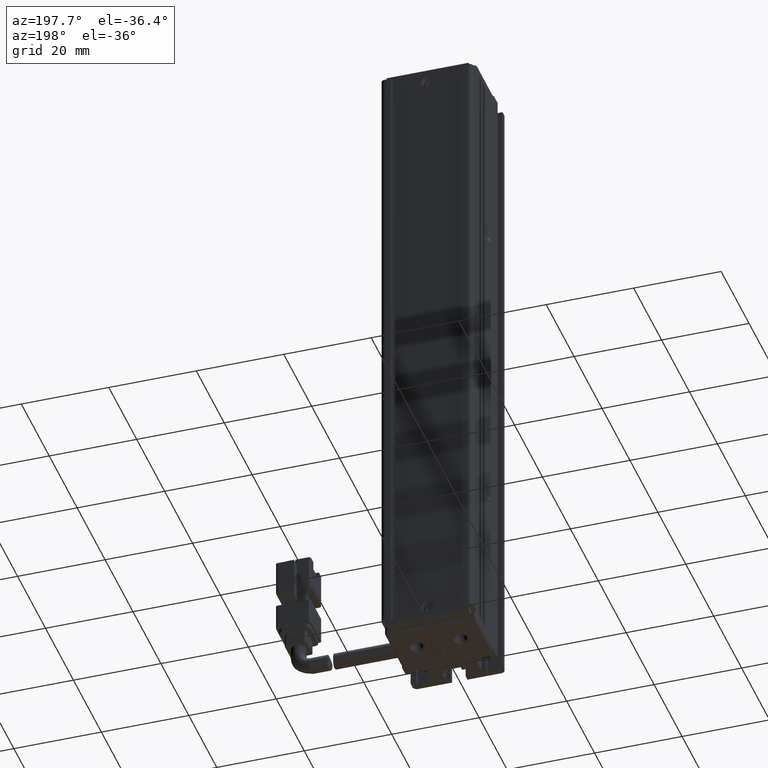
[diagram: clean part render]
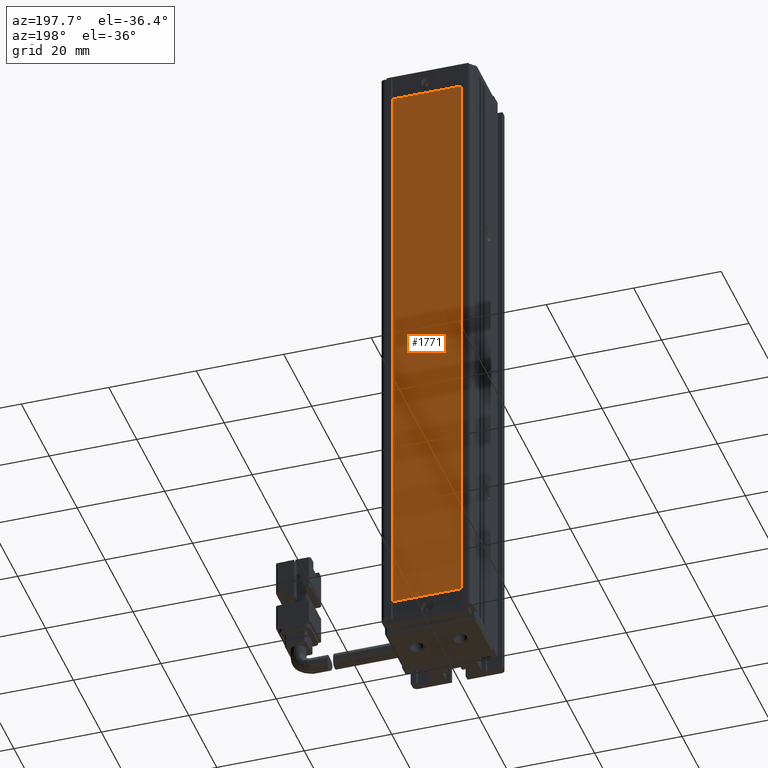
[diagram: same view with one face highlighted and labeled with its STEP entity id]
A machine part, auxiliary view. The second image highlights one B-rep face of the part: STEP entity #1771.
In plain terms, the highlighted planar face has unit normal (0, 1, 0).
Its self-contained STEP definition (entity closure, byte-faithful):
#286 = CARTESIAN_POINT ( 'NONE',  ( 32.92537974683542500, 34.19073232304837300, -183.0000000000000000 ) ) ;
#1771 = ADVANCED_FACE ( 'NONE', ( #39342 ), #8700, .T. ) ;
#2033 = CARTESIAN_POINT ( 'NONE',  ( 32.92537974683542500, 34.19073232304837300, -183.0000000000000000 ) ) ;
#5018 = VERTEX_POINT ( 'NONE', #2033 ) ;
#6035 = VERTEX_POINT ( 'NONE', #38506 ) ;
#6193 = CARTESIAN_POINT ( 'NONE',  ( 48.92537974683541800, 34.19073232304837300, -183.0000000000000000 ) ) ;
#6370 = LINE ( 'NONE', #286, #17532 ) ;
#6866 = DIRECTION ( 'NONE',  ( 1.020425574104004100E-016, 0.0000000000000000000, 1.000000000000000000 ) ) ;
#7505 = VERTEX_POINT ( 'NONE', #6193 ) ;
#8700 = PLANE ( 'NONE',  #29265 ) ;
#8925 = VECTOR ( 'NONE', #34229, 1000.000000000000000 ) ;
#10165 = EDGE_CURVE ( 'NONE', #7505, #5018, #29107, .T. ) ;
#11411 = EDGE_CURVE ( 'NONE', #25879, #6035, #18626, .T. ) ;
#11717 = VECTOR ( 'NONE', #31494, 1000.000000000000000 ) ;
#15444 = CARTESIAN_POINT ( 'NONE',  ( 48.92537974683541800, 34.19073232304837300, -183.0000000000000000 ) ) ;
#17345 = VECTOR ( 'NONE', #19682, 1000.000000000000000 ) ;
#17532 = VECTOR ( 'NONE', #6866, 1000.000000000000000 ) ;
#18626 = LINE ( 'NONE', #33946, #8925 ) ;
#19682 = DIRECTION ( 'NONE',  ( 0.0000000000000000000, 0.0000000000000000000, -1.000000000000000000 ) ) ;
#19975 = ORIENTED_EDGE ( 'NONE', *, *, #24213, .T. ) ;
#22019 = DIRECTION ( 'NONE',  ( 0.0000000000000000000, -0.0000000000000000000, 1.000000000000000000 ) ) ;
#24213 = EDGE_CURVE ( 'NONE', #5018, #25879, #6370, .T. ) ;
#25870 = CARTESIAN_POINT ( 'NONE',  ( 48.92537974683541800, 34.19073232304837300, -46.99999999999998600 ) ) ;
#25879 = VERTEX_POINT ( 'NONE', #31228 ) ;
#29107 = LINE ( 'NONE', #15444, #11717 ) ;
#29265 = AXIS2_PLACEMENT_3D ( 'NONE', #31966, #41447, #22019 ) ;
#31002 = ORIENTED_EDGE ( 'NONE', *, *, #11411, .T. ) ;
#31228 = CARTESIAN_POINT ( 'NONE',  ( 32.92537974683543900, 34.19073232304837300, -46.99999999999998600 ) ) ;
#31494 = DIRECTION ( 'NONE',  ( -1.000000000000000000, 0.0000000000000000000, 0.0000000000000000000 ) ) ;
#31966 = CARTESIAN_POINT ( 'NONE',  ( 0.0000000000000000000, 34.19073232304837300, 0.0000000000000000000 ) ) ;
#32622 = EDGE_CURVE ( 'NONE', #6035, #7505, #32676, .T. ) ;
#32676 = LINE ( 'NONE', #25870, #17345 ) ;
#33946 = CARTESIAN_POINT ( 'NONE',  ( 32.92537974683543900, 34.19073232304837300, -46.99999999999998600 ) ) ;
#34229 = DIRECTION ( 'NONE',  ( 1.000000000000000000, 0.0000000000000000000, 0.0000000000000000000 ) ) ;
#34896 = ORIENTED_EDGE ( 'NONE', *, *, #10165, .T. ) ;
#35184 = EDGE_LOOP ( 'NONE', ( #38790, #34896, #19975, #31002 ) ) ;
#38506 = CARTESIAN_POINT ( 'NONE',  ( 48.92537974683541800, 34.19073232304837300, -46.99999999999998600 ) ) ;
#38790 = ORIENTED_EDGE ( 'NONE', *, *, #32622, .T. ) ;
#39342 = FACE_OUTER_BOUND ( 'NONE', #35184, .T. ) ;
#41447 = DIRECTION ( 'NONE',  ( 0.0000000000000000000, 1.000000000000000000, 0.0000000000000000000 ) ) ;